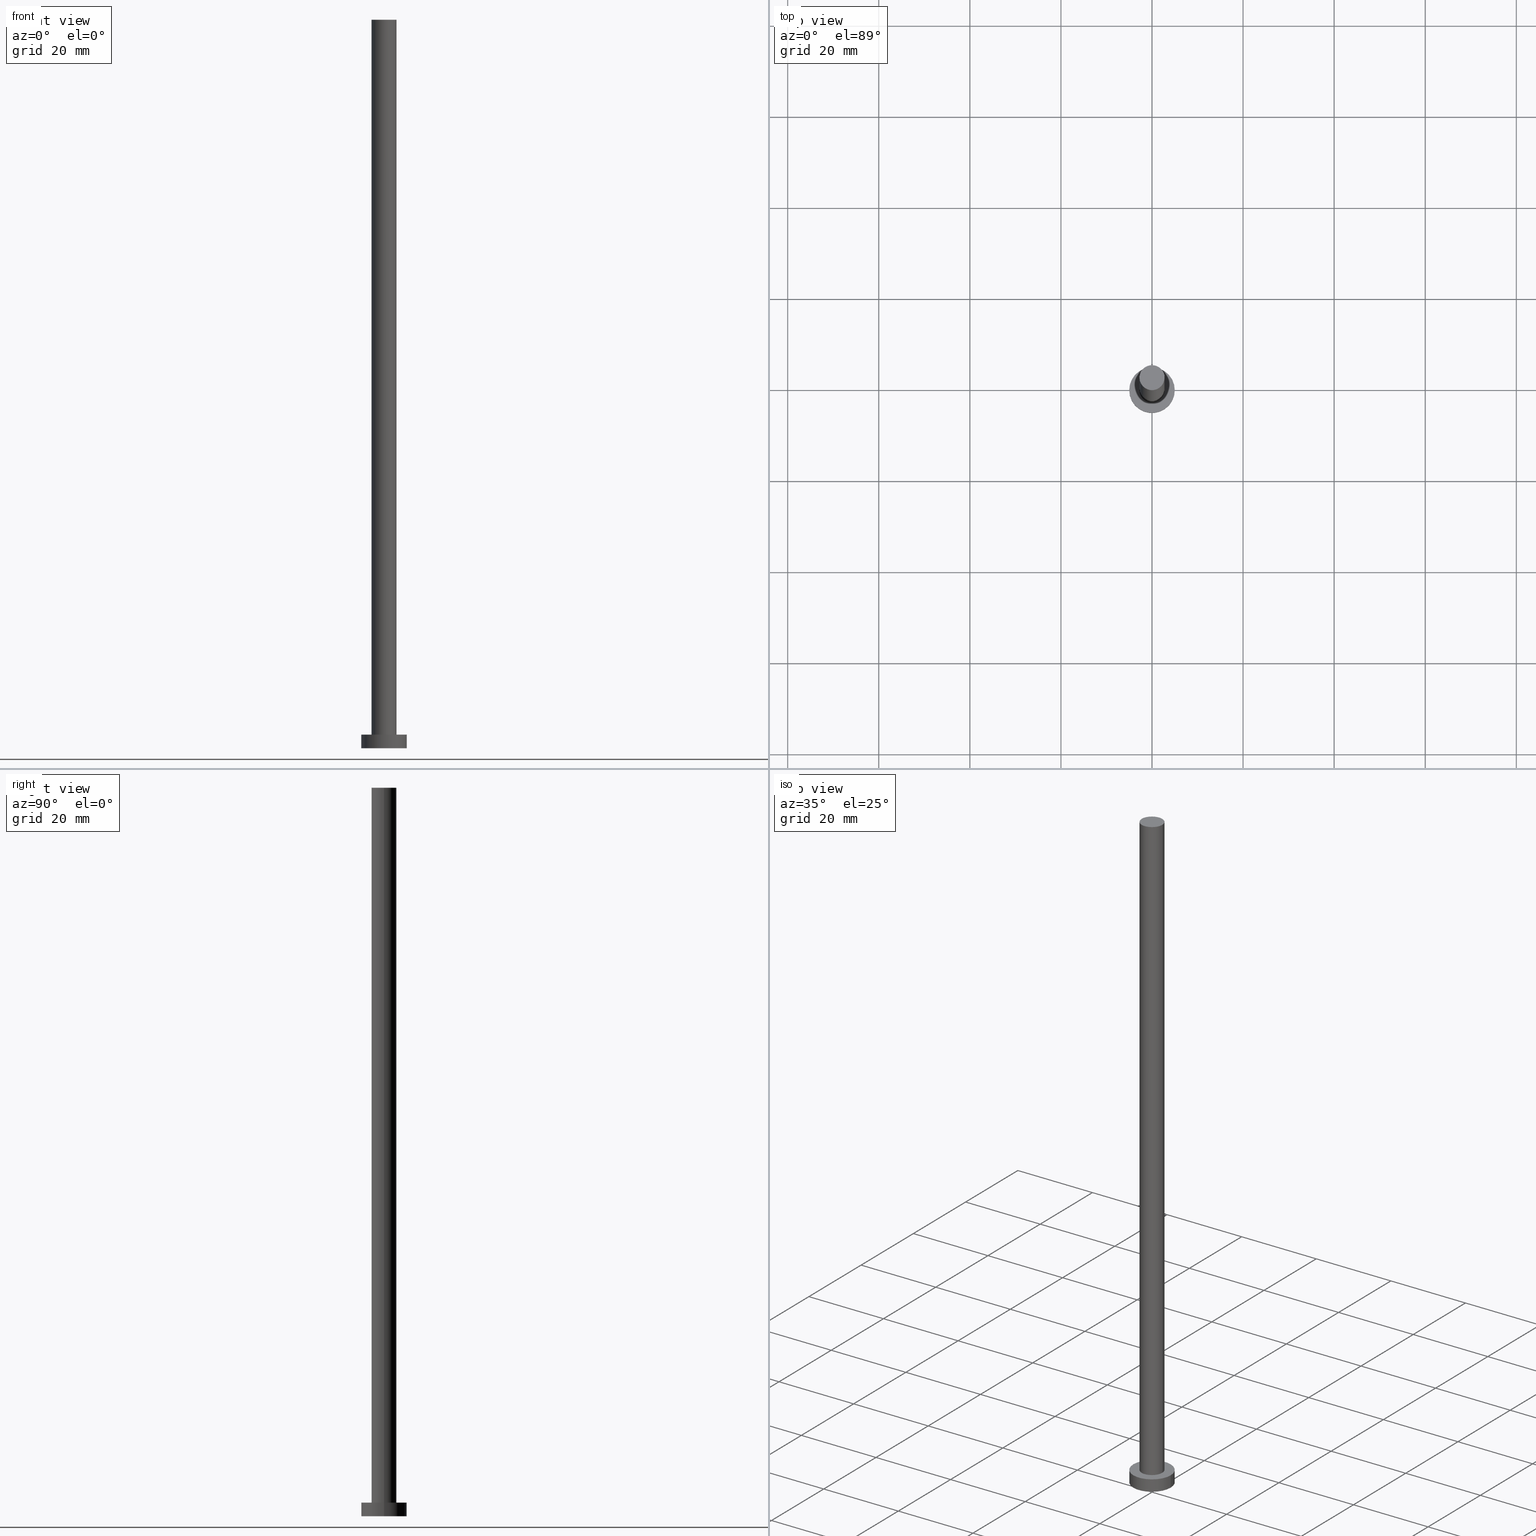
[diagram: canonical four-view strip — front | top / right | iso, engineering-drawing reading convention]
A machine part, canonical four-view strip (front | top / right | iso — engineering-drawing reading convention). The complete STEP part file that produces these views, byte-faithful:
ISO-10303-21;
HEADER;
FILE_DESCRIPTION (( 'STEP AP203' ),
    '1' );
FILE_NAME ('552f.STEP',
    '2023-02-13T12:40:07',
    ( '' ),
    ( '' ),
    'SwSTEP 2.0',
    'SolidWorks 2019',
    '' );
FILE_SCHEMA (( 'CONFIG_CONTROL_DESIGN' ));
ENDSEC;

DATA;
#1 = CARTESIAN_POINT ( 'NONE',  ( 0.000000000000000000, 0.000000000000000000, 0.000000000000000000 ) ) ;
#2 = CARTESIAN_POINT ( 'NONE',  ( -2.750000000000000000, 0.000000000000000000, 160.0000000000000000 ) ) ;
#3 = CARTESIAN_POINT ( 'NONE',  ( 0.000000000000000000, 0.000000000000000000, 0.000000000000000000 ) ) ;
#4 = DIRECTION ( 'NONE',  ( 0.000000000000000000, 0.000000000000000000, 1.000000000000000000 ) ) ;
#5 = PLANE ( 'NONE',  #37 ) ;
#6 = EDGE_CURVE ( 'NONE', #55, #209, #50, .T. ) ;
#7 = DIRECTION ( 'NONE',  ( -0.000000000000000000, -0.000000000000000000, -1.000000000000000000 ) ) ;
#8 = PERSON_AND_ORGANIZATION_ROLE ( 'creator' ) ;
#9 = AXIS2_PLACEMENT_3D ( 'NONE', #198, #26, #172 ) ;
#10 =( GEOMETRIC_REPRESENTATION_CONTEXT ( 3 ) GLOBAL_UNCERTAINTY_ASSIGNED_CONTEXT ( ( #139 ) ) GLOBAL_UNIT_ASSIGNED_CONTEXT ( ( #68, #183, #127 ) ) REPRESENTATION_CONTEXT ( 'NONE', 'WORKASPACE' ) );
#11 = FACE_OUTER_BOUND ( 'NONE', #211, .T. ) ;
#12 = APPROVAL_STATUS ( 'not_yet_approved' ) ;
#13 = ORIENTED_EDGE ( 'NONE', *, *, #92, .T. ) ;
#14 = ORIENTED_EDGE ( 'NONE', *, *, #114, .F. ) ;
#15 = AXIS2_PLACEMENT_3D ( 'NONE', #122, #58, #135 ) ;
#16 = CARTESIAN_POINT ( 'NONE',  ( 0.000000000000000000, 0.000000000000000000, 3.000000000000000000 ) ) ;
#17 = CARTESIAN_POINT ( 'NONE',  ( 5.000000000000000000, 6.123233995736766282E-16, 3.000000000000000000 ) ) ;
#18 = VECTOR ( 'NONE', #217, 1000.000000000000000 ) ;
#19 = CARTESIAN_POINT ( 'NONE',  ( 2.750000000000000000, 3.367778697655221012E-16, 160.0000000000000000 ) ) ;
#20 = ADVANCED_FACE ( 'NONE', ( #157, #156 ), #86, .T. ) ;
#21 = ADVANCED_BREP_SHAPE_REPRESENTATION ( '552f', ( #165, #200 ), #10 ) ;
#22 = CARTESIAN_POINT ( 'NONE',  ( 0.000000000000000000, 0.000000000000000000, 160.0000000000000000 ) ) ;
#23 = CARTESIAN_POINT ( 'NONE',  ( 2.750000000000000000, 3.367778697655221012E-16, 160.0000000000000000 ) ) ;
#24 = CIRCLE ( 'NONE', #155, 5.000000000000000000 ) ;
#25 = ADVANCED_FACE ( 'NONE', ( #88 ), #5, .T. ) ;
#26 = DIRECTION ( 'NONE',  ( 0.000000000000000000, 0.000000000000000000, 1.000000000000000000 ) ) ;
#27 = CALENDAR_DATE ( 2023, 13, 2 ) ;
#28 = EDGE_CURVE ( 'NONE', #213, #187, #118, .T. ) ;
#29 = PERSON_AND_ORGANIZATION ( #103, #94 ) ;
#30 = COORDINATED_UNIVERSAL_TIME_OFFSET ( 1, 0, .AHEAD. ) ;
#31 = APPROVAL ( #12, 'NEUR�EN�' ) ;
#32 = DATE_AND_TIME ( #207, #180 ) ;
#33 = ORIENTED_EDGE ( 'NONE', *, *, #28, .T. ) ;
#34 = ORIENTED_EDGE ( 'NONE', *, *, #114, .T. ) ;
#35 = VERTEX_POINT ( 'NONE', #101 ) ;
#36 = DIRECTION ( 'NONE',  ( 1.000000000000000000, 0.000000000000000000, 0.000000000000000000 ) ) ;
#37 = AXIS2_PLACEMENT_3D ( 'NONE', #176, #119, #193 ) ;
#38 = LINE ( 'NONE', #19, #57 ) ;
#39 = APPROVAL_PERSON_ORGANIZATION ( #111, #98, #249 ) ;
#40 = DIRECTION ( 'NONE',  ( -1.000000000000000000, 0.000000000000000000, 0.000000000000000000 ) ) ;
#41 = DIRECTION ( 'NONE',  ( -1.000000000000000000, 0.000000000000000000, 0.000000000000000000 ) ) ;
#42 = AXIS2_PLACEMENT_3D ( 'NONE', #140, #218, #83 ) ;
#43 = DIRECTION ( 'NONE',  ( -0.000000000000000000, -0.000000000000000000, -1.000000000000000000 ) ) ;
#44 = CC_DESIGN_APPROVAL ( #98, ( #112 ) ) ;
#45 = PERSON_AND_ORGANIZATION ( #103, #94 ) ;
#46 = ADVANCED_FACE ( 'NONE', ( #60 ), #100, .T. ) ;
#47 = APPROVAL_PERSON_ORGANIZATION ( #210, #31, #132 ) ;
#48 = LINE ( 'NONE', #203, #99 ) ;
#49 = APPROVAL_DATE_TIME ( #65, #98 ) ;
#50 = CIRCLE ( 'NONE', #167, 2.750000000000000000 ) ;
#51 = EDGE_LOOP ( 'NONE', ( #115, #255 ) ) ;
#52 = COORDINATED_UNIVERSAL_TIME_OFFSET ( 1, 0, .AHEAD. ) ;
#53 = APPLICATION_CONTEXT ( 'configuration controlled 3d designs of mechanical parts and assemblies' ) ;
#54 = EDGE_CURVE ( 'NONE', #209, #55, #69, .T. ) ;
#55 = VERTEX_POINT ( 'NONE', #195 ) ;
#56 = ORIENTED_EDGE ( 'NONE', *, *, #28, .F. ) ;
#57 = VECTOR ( 'NONE', #154, 1000.000000000000000 ) ;
#58 = DIRECTION ( 'NONE',  ( 0.000000000000000000, 0.000000000000000000, 1.000000000000000000 ) ) ;
#59 = DIRECTION ( 'NONE',  ( 0.000000000000000000, 0.000000000000000000, 1.000000000000000000 ) ) ;
#60 = FACE_OUTER_BOUND ( 'NONE', #131, .T. ) ;
#61 = FACE_OUTER_BOUND ( 'NONE', #170, .T. ) ;
#62 = ADVANCED_FACE ( 'NONE', ( #242 ), #238, .T. ) ;
#63 = DIRECTION ( 'NONE',  ( 0.000000000000000000, 0.000000000000000000, 1.000000000000000000 ) ) ;
#64 = CIRCLE ( 'NONE', #222, 5.000000000000000000 ) ;
#65 = DATE_AND_TIME ( #71, #236 ) ;
#66 = PRODUCT_DEFINITION ( 'NEZN�M�', '', #112, #123 ) ;
#67 = DIRECTION ( 'NONE',  ( 0.000000000000000000, 0.000000000000000000, 1.000000000000000000 ) ) ;
#68 =( LENGTH_UNIT ( ) NAMED_UNIT ( * ) SI_UNIT ( .MILLI., .METRE. ) );
#69 = CIRCLE ( 'NONE', #196, 2.750000000000000000 ) ;
#70 = LOCAL_TIME ( 13, 40, 7.000000000000000000, #128 ) ;
#71 = CALENDAR_DATE ( 2023, 13, 2 ) ;
#72 = CC_DESIGN_PERSON_AND_ORGANIZATION_ASSIGNMENT ( #223, #8, ( #112 ) ) ;
#73 = DATE_TIME_ROLE ( 'classification_date' ) ;
#74 = VERTEX_POINT ( 'NONE', #239 ) ;
#75 = AXIS2_PLACEMENT_3D ( 'NONE', #89, #90, #178 ) ;
#76 = ORIENTED_EDGE ( 'NONE', *, *, #173, .T. ) ;
#77 = ORIENTED_EDGE ( 'NONE', *, *, #116, .T. ) ;
#78 = ORIENTED_EDGE ( 'NONE', *, *, #6, .T. ) ;
#79 = CIRCLE ( 'NONE', #9, 5.000000000000000000 ) ;
#80 = LOCAL_TIME ( 13, 40, 7.000000000000000000, #52 ) ;
#81 = EDGE_LOOP ( 'NONE', ( #232, #146, #205, #78 ) ) ;
#82 = CARTESIAN_POINT ( 'NONE',  ( 0.000000000000000000, 0.000000000000000000, 160.0000000000000000 ) ) ;
#83 = DIRECTION ( 'NONE',  ( -1.000000000000000000, 0.000000000000000000, 0.000000000000000000 ) ) ;
#84 = APPLICATION_CONTEXT ( 'configuration controlled 3d designs of mechanical parts and assemblies' ) ;
#85 = ADVANCED_FACE ( 'NONE', ( #102 ), #192, .T. ) ;
#86 = PLANE ( 'NONE',  #15 ) ;
#87 = DIRECTION ( 'NONE',  ( 0.000000000000000000, 0.000000000000000000, 1.000000000000000000 ) ) ;
#88 = FACE_OUTER_BOUND ( 'NONE', #229, .T. ) ;
#89 = CARTESIAN_POINT ( 'NONE',  ( 0.000000000000000000, 0.000000000000000000, 3.000000000000000000 ) ) ;
#90 = DIRECTION ( 'NONE',  ( -0.000000000000000000, -0.000000000000000000, -1.000000000000000000 ) ) ;
#91 = DATE_AND_TIME ( #182, #70 ) ;
#92 = EDGE_CURVE ( 'NONE', #213, #189, #79, .T. ) ;
#93 = DATE_TIME_ROLE ( 'creation_date' ) ;
#94 = ORGANIZATION ( 'NEUR�EN�', 'NEUR�EN�', '' ) ;
#95 = VERTEX_POINT ( 'NONE', #23 ) ;
#96 = PERSON_AND_ORGANIZATION_ROLE ( 'design_supplier' ) ;
#97 = EDGE_LOOP ( 'NONE', ( #231, #235, #254, #151 ) ) ;
#98 = APPROVAL ( #184, 'NEUR�EN�' ) ;
#99 = VECTOR ( 'NONE', #7, 1000.000000000000000 ) ;
#100 = CYLINDRICAL_SURFACE ( 'NONE', #42, 5.000000000000000000 ) ;
#101 = CARTESIAN_POINT ( 'NONE',  ( -2.750000000000000000, 0.000000000000000000, 160.0000000000000000 ) ) ;
#102 = FACE_OUTER_BOUND ( 'NONE', #97, .T. ) ;
#103 = PERSON ( 'NEUR�EN�', 'NEUR�EN�', 'NEUR�EN�', ('NEUR�EN�'), ('NEUR�EN�'), ('NEUR�EN�') ) ;
#104 = DIRECTION ( 'NONE',  ( 0.000000000000000000, 0.000000000000000000, 1.000000000000000000 ) ) ;
#105 = DIRECTION ( 'NONE',  ( 0.000000000000000000, 0.000000000000000000, 1.000000000000000000 ) ) ;
#106 = CARTESIAN_POINT ( 'NONE',  ( 5.000000000000000000, 6.123233995736766282E-16, 0.000000000000000000 ) ) ;
#107 = VECTOR ( 'NONE', #120, 1000.000000000000000 ) ;
#108 = PERSON_AND_ORGANIZATION ( #103, #94 ) ;
#109 = PRODUCT_RELATED_PRODUCT_CATEGORY ( 'detail', '', ( #143 ) ) ;
#110 = DIRECTION ( 'NONE',  ( 0.000000000000000000, 0.000000000000000000, 1.000000000000000000 ) ) ;
#111 = PERSON_AND_ORGANIZATION ( #103, #94 ) ;
#112 = PRODUCT_DEFINITION_FORMATION_WITH_SPECIFIED_SOURCE ( 'LIBOVOLN�', '', #143, .NOT_KNOWN. ) ;
#113 = ORIENTED_EDGE ( 'NONE', *, *, #194, .T. ) ;
#114 = EDGE_CURVE ( 'NONE', #187, #74, #64, .T. ) ;
#115 = ORIENTED_EDGE ( 'NONE', *, *, #6, .F. ) ;
#116 = EDGE_CURVE ( 'NONE', #95, #35, #204, .T. ) ;
#117 = APPROVAL_DATE_TIME ( #186, #31 ) ;
#118 = LINE ( 'NONE', #17, #107 ) ;
#119 = DIRECTION ( 'NONE',  ( 0.000000000000000000, 0.000000000000000000, 1.000000000000000000 ) ) ;
#120 = DIRECTION ( 'NONE',  ( -0.000000000000000000, -0.000000000000000000, -1.000000000000000000 ) ) ;
#121 = DIRECTION ( 'NONE',  ( 1.000000000000000000, 0.000000000000000000, -0.000000000000000000 ) ) ;
#122 = CARTESIAN_POINT ( 'NONE',  ( 0.000000000000000000, 0.000000000000000000, 3.000000000000000000 ) ) ;
#123 = DESIGN_CONTEXT ( 'detailed design', #84, 'design' ) ;
#124 = APPROVAL_ROLE ( '' ) ;
#125 = CARTESIAN_POINT ( 'NONE',  ( 5.000000000000000000, 6.123233995736766282E-16, 3.000000000000000000 ) ) ;
#126 = CC_DESIGN_DATE_AND_TIME_ASSIGNMENT ( #32, #73, ( #185 ) ) ;
#127 =( NAMED_UNIT ( * ) SI_UNIT ( $, .STERADIAN. ) SOLID_ANGLE_UNIT ( ) );
#128 = COORDINATED_UNIVERSAL_TIME_OFFSET ( 1, 0, .AHEAD. ) ;
#129 = ORIENTED_EDGE ( 'NONE', *, *, #181, .T. ) ;
#130 = CALENDAR_DATE ( 2023, 13, 2 ) ;
#131 = EDGE_LOOP ( 'NONE', ( #150, #33, #34, #188 ) ) ;
#132 = APPROVAL_ROLE ( '' ) ;
#133 = EDGE_LOOP ( 'NONE', ( #129, #13 ) ) ;
#134 = CARTESIAN_POINT ( 'NONE',  ( 0.000000000000000000, 0.000000000000000000, 0.000000000000000000 ) ) ;
#135 = DIRECTION ( 'NONE',  ( 1.000000000000000000, 0.000000000000000000, -0.000000000000000000 ) ) ;
#136 = CIRCLE ( 'NONE', #145, 2.750000000000000000 ) ;
#137 = DIRECTION ( 'NONE',  ( 1.000000000000000000, 0.000000000000000000, 0.000000000000000000 ) ) ;
#138 = CARTESIAN_POINT ( 'NONE',  ( 0.000000000000000000, 0.000000000000000000, 3.000000000000000000 ) ) ;
#139 = UNCERTAINTY_MEASURE_WITH_UNIT (LENGTH_MEASURE( 1.000000000000000082E-05 ), #68, 'distance_accuracy_value', 'NONE');
#140 = CARTESIAN_POINT ( 'NONE',  ( 0.000000000000000000, 0.000000000000000000, 3.000000000000000000 ) ) ;
#141 = CC_DESIGN_PERSON_AND_ORGANIZATION_ASSIGNMENT ( #29, #159, ( #143 ) ) ;
#142 = CARTESIAN_POINT ( 'NONE',  ( 2.750000000000000000, 3.367778697655221012E-16, 3.000000000000000000 ) ) ;
#143 = PRODUCT ( '552f', '552f', '', ( #225 ) ) ;
#144 = DIRECTION ( 'NONE',  ( 1.000000000000000000, 0.000000000000000000, 0.000000000000000000 ) ) ;
#145 = AXIS2_PLACEMENT_3D ( 'NONE', #247, #110, #144 ) ;
#146 = ORIENTED_EDGE ( 'NONE', *, *, #194, .F. ) ;
#147 = PRODUCT_DEFINITION_SHAPE ( 'NONE', 'NONE',  #66 ) ;
#148 = EDGE_CURVE ( 'NONE', #35, #55, #237, .T. ) ;
#149 = AXIS2_PLACEMENT_3D ( 'NONE', #82, #220, #40 ) ;
#150 = ORIENTED_EDGE ( 'NONE', *, *, #92, .F. ) ;
#151 = ORIENTED_EDGE ( 'NONE', *, *, #148, .F. ) ;
#152 = CARTESIAN_POINT ( 'NONE',  ( 0.000000000000000000, 0.000000000000000000, 160.0000000000000000 ) ) ;
#153 = ADVANCED_FACE ( 'NONE', ( #61 ), #175, .F. ) ;
#154 = DIRECTION ( 'NONE',  ( -0.000000000000000000, -0.000000000000000000, -1.000000000000000000 ) ) ;
#155 = AXIS2_PLACEMENT_3D ( 'NONE', #138, #87, #177 ) ;
#156 = FACE_OUTER_BOUND ( 'NONE', #133, .T. ) ;
#157 = FACE_BOUND ( 'NONE', #51, .T. ) ;
#158 = EDGE_CURVE ( 'NONE', #95, #209, #38, .T. ) ;
#159 = PERSON_AND_ORGANIZATION_ROLE ( 'design_owner' ) ;
#160 = APPLICATION_PROTOCOL_DEFINITION ( 'international standard', 'config_control_design', 1994, #53 ) ;
#161 = CARTESIAN_POINT ( 'NONE',  ( 0.000000000000000000, 0.000000000000000000, 0.000000000000000000 ) ) ;
#162 = AXIS2_PLACEMENT_3D ( 'NONE', #152, #59, #174 ) ;
#163 = APPROVAL_STATUS ( 'not_yet_approved' ) ;
#164 = APPROVAL ( #163, 'NEUR�EN�' ) ;
#165 = MANIFOLD_SOLID_BREP ( 'P�idat vysunut�m3', #216 ) ;
#166 = SECURITY_CLASSIFICATION_LEVEL ( 'unclassified' ) ;
#167 = AXIS2_PLACEMENT_3D ( 'NONE', #16, #63, #191 ) ;
#168 = AXIS2_PLACEMENT_3D ( 'NONE', #134, #4, #121 ) ;
#169 = CC_DESIGN_PERSON_AND_ORGANIZATION_ASSIGNMENT ( #230, #228, ( #185 ) ) ;
#170 = EDGE_LOOP ( 'NONE', ( #251, #14 ) ) ;
#171 = ORIENTED_EDGE ( 'NONE', *, *, #190, .T. ) ;
#172 = DIRECTION ( 'NONE',  ( 1.000000000000000000, 0.000000000000000000, 0.000000000000000000 ) ) ;
#173 = EDGE_CURVE ( 'NONE', #74, #187, #253, .T. ) ;
#174 = DIRECTION ( 'NONE',  ( 1.000000000000000000, 0.000000000000000000, 0.000000000000000000 ) ) ;
#175 = PLANE ( 'NONE',  #168 ) ;
#176 = CARTESIAN_POINT ( 'NONE',  ( 0.000000000000000000, 0.000000000000000000, 160.0000000000000000 ) ) ;
#177 = DIRECTION ( 'NONE',  ( 1.000000000000000000, 0.000000000000000000, 0.000000000000000000 ) ) ;
#178 = DIRECTION ( 'NONE',  ( -1.000000000000000000, 0.000000000000000000, 0.000000000000000000 ) ) ;
#179 = COORDINATED_UNIVERSAL_TIME_OFFSET ( 1, 0, .AHEAD. ) ;
#180 = LOCAL_TIME ( 13, 40, 7.000000000000000000, #250 ) ;
#181 = EDGE_CURVE ( 'NONE', #189, #213, #24, .T. ) ;
#182 = CALENDAR_DATE ( 2023, 13, 2 ) ;
#183 =( NAMED_UNIT ( * ) PLANE_ANGLE_UNIT ( ) SI_UNIT ( $, .RADIAN. ) );
#184 = APPROVAL_STATUS ( 'not_yet_approved' ) ;
#185 = SECURITY_CLASSIFICATION ( '', '', #166 ) ;
#186 = DATE_AND_TIME ( #130, #80 ) ;
#187 = VERTEX_POINT ( 'NONE', #106 ) ;
#188 = ORIENTED_EDGE ( 'NONE', *, *, #190, .F. ) ;
#189 = VERTEX_POINT ( 'NONE', #199 ) ;
#190 = EDGE_CURVE ( 'NONE', #189, #74, #48, .T. ) ;
#191 = DIRECTION ( 'NONE',  ( 1.000000000000000000, 0.000000000000000000, 0.000000000000000000 ) ) ;
#192 = CYLINDRICAL_SURFACE ( 'NONE', #149, 2.750000000000000000 ) ;
#193 = DIRECTION ( 'NONE',  ( 1.000000000000000000, 0.000000000000000000, -0.000000000000000000 ) ) ;
#194 = EDGE_CURVE ( 'NONE', #35, #95, #136, .T. ) ;
#195 = CARTESIAN_POINT ( 'NONE',  ( -2.750000000000000000, 0.000000000000000000, 3.000000000000000000 ) ) ;
#196 = AXIS2_PLACEMENT_3D ( 'NONE', #221, #104, #241 ) ;
#197 = CC_DESIGN_APPROVAL ( #31, ( #185 ) ) ;
#198 = CARTESIAN_POINT ( 'NONE',  ( 0.000000000000000000, 0.000000000000000000, 3.000000000000000000 ) ) ;
#199 = CARTESIAN_POINT ( 'NONE',  ( -5.000000000000000000, 0.000000000000000000, 3.000000000000000000 ) ) ;
#200 = AXIS2_PLACEMENT_3D ( 'NONE', #161, #67, #246 ) ;
#201 = DATE_AND_TIME ( #27, #212 ) ;
#202 = ADVANCED_FACE ( 'NONE', ( #11 ), #243, .T. ) ;
#203 = CARTESIAN_POINT ( 'NONE',  ( -5.000000000000000000, 0.000000000000000000, 3.000000000000000000 ) ) ;
#204 = CIRCLE ( 'NONE', #162, 2.750000000000000000 ) ;
#205 = ORIENTED_EDGE ( 'NONE', *, *, #148, .T. ) ;
#206 = APPROVAL_PERSON_ORGANIZATION ( #45, #164, #124 ) ;
#207 = CALENDAR_DATE ( 2023, 13, 2 ) ;
#208 = SHAPE_DEFINITION_REPRESENTATION ( #147, #21 ) ;
#209 = VERTEX_POINT ( 'NONE', #142 ) ;
#210 = PERSON_AND_ORGANIZATION ( #103, #94 ) ;
#211 = EDGE_LOOP ( 'NONE', ( #56, #252, #171, #76 ) ) ;
#212 = LOCAL_TIME ( 13, 40, 7.000000000000000000, #30 ) ;
#213 = VERTEX_POINT ( 'NONE', #125 ) ;
#214 = CC_DESIGN_PERSON_AND_ORGANIZATION_ASSIGNMENT ( #234, #96, ( #112 ) ) ;
#215 = DIRECTION ( 'NONE',  ( 0.000000000000000000, 0.000000000000000000, 1.000000000000000000 ) ) ;
#216 = CLOSED_SHELL ( 'NONE', ( #85, #46, #202, #20, #153, #62, #25 ) ) ;
#217 = DIRECTION ( 'NONE',  ( -0.000000000000000000, -0.000000000000000000, -1.000000000000000000 ) ) ;
#218 = DIRECTION ( 'NONE',  ( -0.000000000000000000, -0.000000000000000000, -1.000000000000000000 ) ) ;
#219 = CC_DESIGN_DATE_AND_TIME_ASSIGNMENT ( #91, #93, ( #66 ) ) ;
#220 = DIRECTION ( 'NONE',  ( -0.000000000000000000, -0.000000000000000000, -1.000000000000000000 ) ) ;
#221 = CARTESIAN_POINT ( 'NONE',  ( 0.000000000000000000, 0.000000000000000000, 3.000000000000000000 ) ) ;
#222 = AXIS2_PLACEMENT_3D ( 'NONE', #1, #105, #137 ) ;
#223 = PERSON_AND_ORGANIZATION ( #103, #94 ) ;
#224 = APPLICATION_PROTOCOL_DEFINITION ( 'international standard', 'config_control_design', 1994, #84 ) ;
#225 = MECHANICAL_CONTEXT ( 'NONE', #53, 'mechanical' ) ;
#226 = AXIS2_PLACEMENT_3D ( 'NONE', #3, #215, #36 ) ;
#227 = APPROVAL_DATE_TIME ( #201, #164 ) ;
#228 = PERSON_AND_ORGANIZATION_ROLE ( 'classification_officer' ) ;
#229 = EDGE_LOOP ( 'NONE', ( #113, #77 ) ) ;
#230 = PERSON_AND_ORGANIZATION ( #103, #94 ) ;
#231 = ORIENTED_EDGE ( 'NONE', *, *, #116, .F. ) ;
#232 = ORIENTED_EDGE ( 'NONE', *, *, #158, .F. ) ;
#233 = AXIS2_PLACEMENT_3D ( 'NONE', #22, #43, #41 ) ;
#234 = PERSON_AND_ORGANIZATION ( #103, #94 ) ;
#235 = ORIENTED_EDGE ( 'NONE', *, *, #158, .T. ) ;
#236 = LOCAL_TIME ( 13, 40, 7.000000000000000000, #179 ) ;
#237 = LINE ( 'NONE', #2, #18 ) ;
#238 = CYLINDRICAL_SURFACE ( 'NONE', #233, 2.750000000000000000 ) ;
#239 = CARTESIAN_POINT ( 'NONE',  ( -5.000000000000000000, 0.000000000000000000, 0.000000000000000000 ) ) ;
#240 = CC_DESIGN_APPROVAL ( #164, ( #66 ) ) ;
#241 = DIRECTION ( 'NONE',  ( 1.000000000000000000, 0.000000000000000000, 0.000000000000000000 ) ) ;
#242 = FACE_OUTER_BOUND ( 'NONE', #81, .T. ) ;
#243 = CYLINDRICAL_SURFACE ( 'NONE', #75, 5.000000000000000000 ) ;
#244 = CC_DESIGN_PERSON_AND_ORGANIZATION_ASSIGNMENT ( #108, #248, ( #66 ) ) ;
#245 = CC_DESIGN_SECURITY_CLASSIFICATION ( #185, ( #112 ) ) ;
#246 = DIRECTION ( 'NONE',  ( 1.000000000000000000, 0.000000000000000000, 0.000000000000000000 ) ) ;
#247 = CARTESIAN_POINT ( 'NONE',  ( 0.000000000000000000, 0.000000000000000000, 160.0000000000000000 ) ) ;
#248 = PERSON_AND_ORGANIZATION_ROLE ( 'creator' ) ;
#249 = APPROVAL_ROLE ( '' ) ;
#250 = COORDINATED_UNIVERSAL_TIME_OFFSET ( 1, 0, .AHEAD. ) ;
#251 = ORIENTED_EDGE ( 'NONE', *, *, #173, .F. ) ;
#252 = ORIENTED_EDGE ( 'NONE', *, *, #181, .F. ) ;
#253 = CIRCLE ( 'NONE', #226, 5.000000000000000000 ) ;
#254 = ORIENTED_EDGE ( 'NONE', *, *, #54, .T. ) ;
#255 = ORIENTED_EDGE ( 'NONE', *, *, #54, .F. ) ;
ENDSEC;
END-ISO-10303-21;
